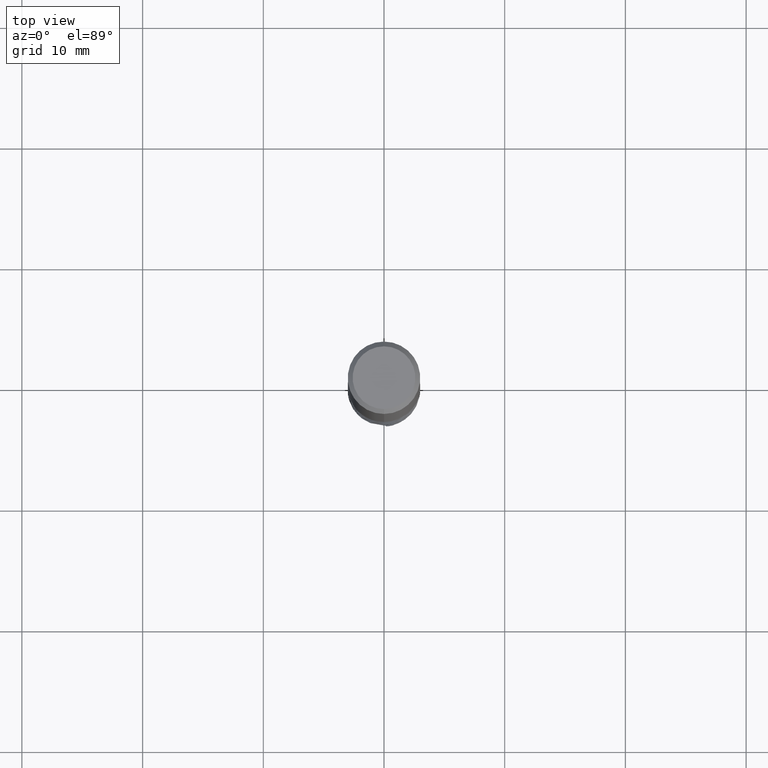
[diagram: clean part render]
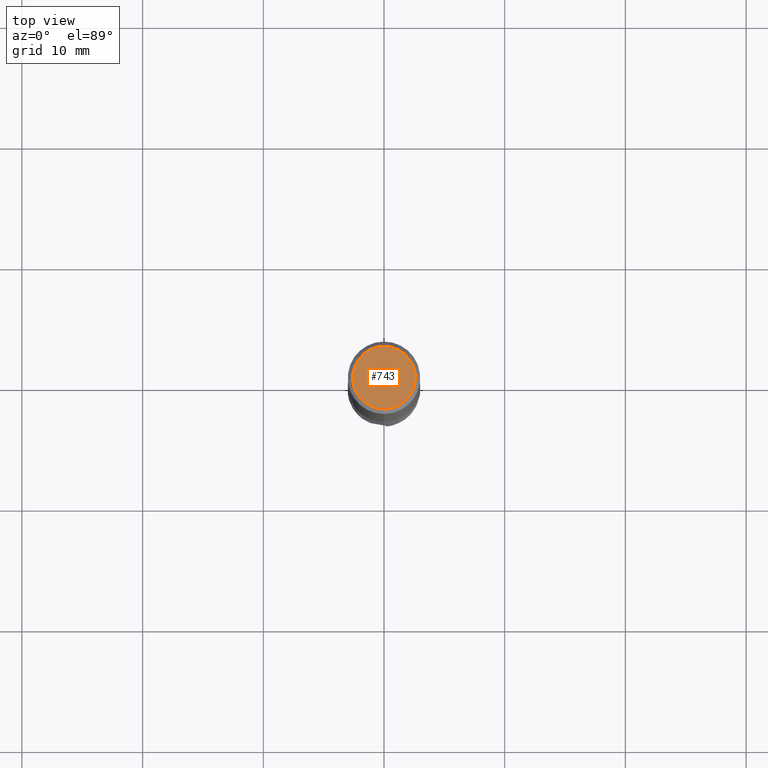
[diagram: same view with one face highlighted and labeled with its STEP entity id]
A machine part, top view. The second image highlights one B-rep face of the part: STEP entity #743.
In plain terms, the highlighted planar face has unit normal (-0, 0, 1).
Its self-contained STEP definition (entity closure, byte-faithful):
#743=ADVANCED_FACE('',(#1813),#1814,.T.);
#795=VERTEX_POINT('',#1873);
#987=VERTEX_POINT('',#2082);
#1127=EDGE_CURVE('',#795,#987,#2231,.T.);
#1505=EDGE_CURVE('',#987,#795,#2652,.T.);
#1813=FACE_OUTER_BOUND('',#4214,.T.);
#1814=PLANE('',#4215);
#1873=CARTESIAN_POINT('',(3.18397651993818E-016,-2.6,0.0));
#2082=CARTESIAN_POINT('',(0.0,2.6,0.0));
#2231=CIRCLE('',#7325,2.6);
#2652=CIRCLE('',#10920,2.6);
#4214=EDGE_LOOP('',(#11598,#11599));
#4215=AXIS2_PLACEMENT_3D('',#11600,#11601,#11602);
#7325=AXIS2_PLACEMENT_3D('',#12033,#12034,#12035);
#10920=AXIS2_PLACEMENT_3D('',#12557,#12558,#12559);
#11598=ORIENTED_EDGE('',*,*,#1505,.F.);
#11599=ORIENTED_EDGE('',*,*,#1127,.F.);
#11600=CARTESIAN_POINT('',(0.0,1.3,0.0));
#11601=DIRECTION('',(-0.0,0.0,1.0));
#11602=DIRECTION('',(0.0,-1.0,0.0));
#12033=CARTESIAN_POINT('',(0.0,0.0,0.0));
#12034=DIRECTION('',(0.0,0.0,-1.0));
#12035=DIRECTION('',(0.0,1.0,0.0));
#12557=CARTESIAN_POINT('',(0.0,0.0,0.0));
#12558=DIRECTION('',(0.0,0.0,-1.0));
#12559=DIRECTION('',(0.0,1.0,0.0));